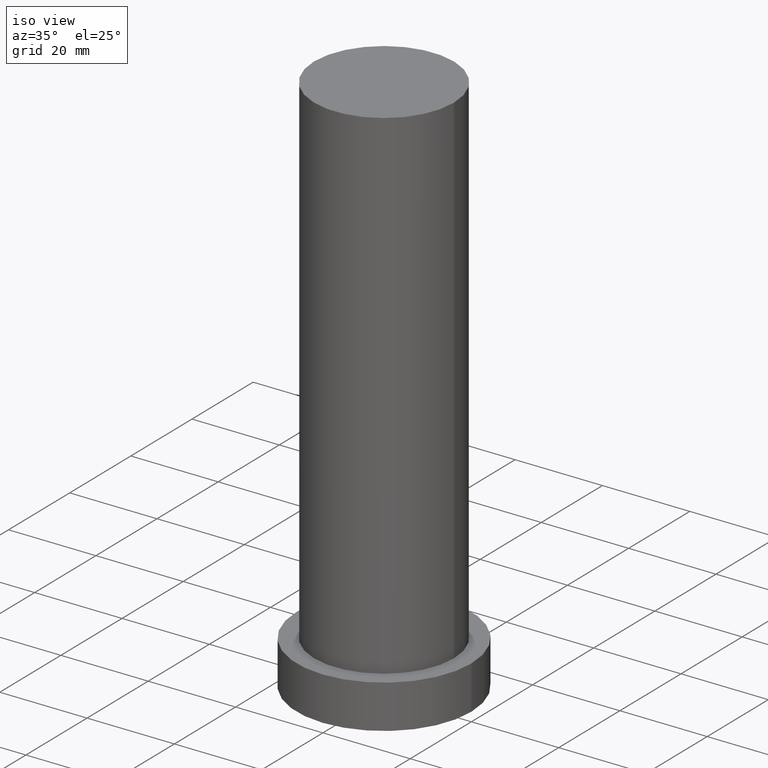
[diagram: clean part render]
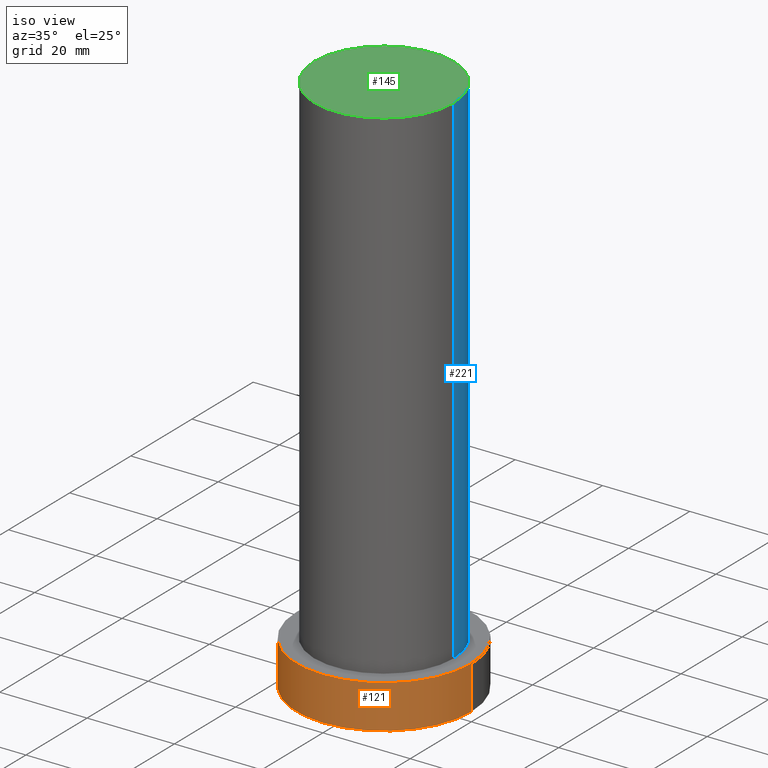
[diagram: same view with three faces highlighted in distinct colors, each labeled with its STEP entity id]
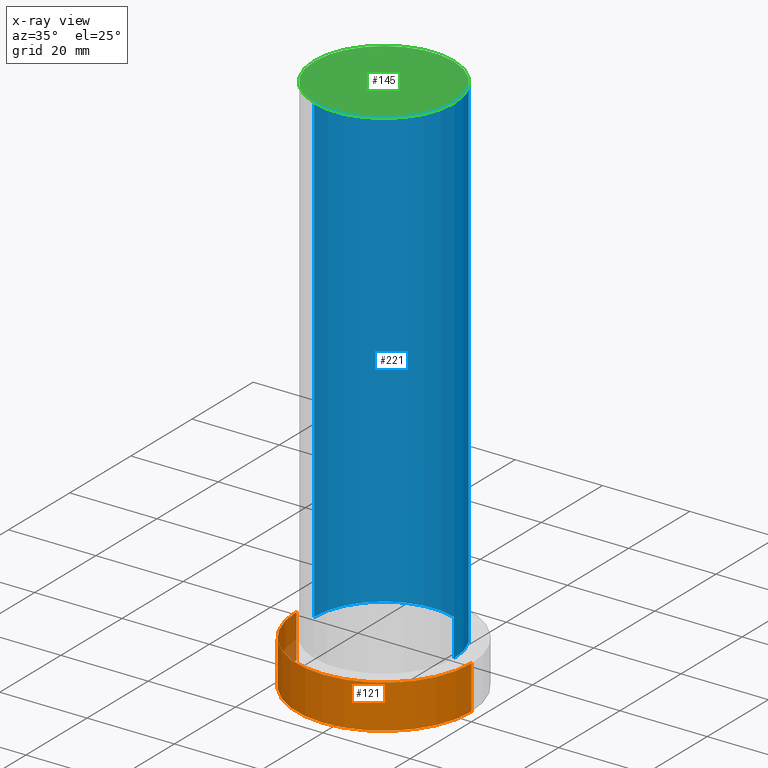
[diagram: x-ray of the same camera — body ghosted, the three highlighted faces saturated]
A machine part, iso view with three faces highlighted in distinct colors.
The next image is the same camera in x-ray (body ghosted, the three faces saturated) — at least one of them is partly hidden behind the body in this view.
Their STEP definitions:

[orange] entity #121 — the highlighted cylindrical surface (partial cylindrical patch) has radius 20 mm, axis along (-0, -0, -1).
#2 = ORIENTED_EDGE ( 'NONE', *, *, #242, .F. ) ;
#3 = CARTESIAN_POINT ( 'NONE',  ( 20.00000000000000000, 2.449293598294706513E-15, 0.000000000000000000 ) ) ;
#5 = VERTEX_POINT ( 'NONE', #142 ) ;
#13 = LINE ( 'NONE', #104, #189 ) ;
#43 = VERTEX_POINT ( 'NONE', #208 ) ;
#66 = DIRECTION ( 'NONE',  ( 1.000000000000000000, 0.000000000000000000, 0.000000000000000000 ) ) ;
#67 = CIRCLE ( 'NONE', #98, 20.00000000000000000 ) ;
#68 = ORIENTED_EDGE ( 'NONE', *, *, #203, .F. ) ;
#76 = ORIENTED_EDGE ( 'NONE', *, *, #216, .T. ) ;
#78 = CARTESIAN_POINT ( 'NONE',  ( 0.000000000000000000, 0.000000000000000000, 10.00000000000000000 ) ) ;
#91 = CARTESIAN_POINT ( 'NONE',  ( 0.000000000000000000, 0.000000000000000000, 10.00000000000000000 ) ) ;
#95 = VERTEX_POINT ( 'NONE', #3 ) ;
#98 = AXIS2_PLACEMENT_3D ( 'NONE', #195, #229, #124 ) ;
#104 = CARTESIAN_POINT ( 'NONE',  ( -20.00000000000000000, 0.000000000000000000, 10.00000000000000000 ) ) ;
#116 = EDGE_LOOP ( 'NONE', ( #68, #2, #76, #225 ) ) ;
#121 = ADVANCED_FACE ( 'NONE', ( #202 ), #138, .T. ) ;
#124 = DIRECTION ( 'NONE',  ( 1.000000000000000000, 0.000000000000000000, 0.000000000000000000 ) ) ;
#132 = CIRCLE ( 'NONE', #170, 20.00000000000000000 ) ;
#138 = CYLINDRICAL_SURFACE ( 'NONE', #218, 20.00000000000000000 ) ;
#142 = CARTESIAN_POINT ( 'NONE',  ( 20.00000000000000000, 2.449293598294706513E-15, 10.00000000000000000 ) ) ;
#153 = VERTEX_POINT ( 'NONE', #159 ) ;
#158 = DIRECTION ( 'NONE',  ( -1.000000000000000000, 0.000000000000000000, 0.000000000000000000 ) ) ;
#159 = CARTESIAN_POINT ( 'NONE',  ( -20.00000000000000000, 0.000000000000000000, 0.000000000000000000 ) ) ;
#170 = AXIS2_PLACEMENT_3D ( 'NONE', #78, #173, #66 ) ;
#173 = DIRECTION ( 'NONE',  ( 0.000000000000000000, 0.000000000000000000, 1.000000000000000000 ) ) ;
#184 = EDGE_CURVE ( 'NONE', #153, #95, #67, .T. ) ;
#187 = DIRECTION ( 'NONE',  ( -0.000000000000000000, -0.000000000000000000, -1.000000000000000000 ) ) ;
#189 = VECTOR ( 'NONE', #192, 1000.000000000000000 ) ;
#191 = LINE ( 'NONE', #210, #199 ) ;
#192 = DIRECTION ( 'NONE',  ( -0.000000000000000000, -0.000000000000000000, -1.000000000000000000 ) ) ;
#195 = CARTESIAN_POINT ( 'NONE',  ( 0.000000000000000000, 0.000000000000000000, 0.000000000000000000 ) ) ;
#199 = VECTOR ( 'NONE', #187, 1000.000000000000000 ) ;
#202 = FACE_OUTER_BOUND ( 'NONE', #116, .T. ) ;
#203 = EDGE_CURVE ( 'NONE', #5, #95, #191, .T. ) ;
#204 = DIRECTION ( 'NONE',  ( -0.000000000000000000, -0.000000000000000000, -1.000000000000000000 ) ) ;
#208 = CARTESIAN_POINT ( 'NONE',  ( -20.00000000000000000, 0.000000000000000000, 10.00000000000000000 ) ) ;
#210 = CARTESIAN_POINT ( 'NONE',  ( 20.00000000000000000, 2.449293598294706513E-15, 10.00000000000000000 ) ) ;
#216 = EDGE_CURVE ( 'NONE', #43, #153, #13, .T. ) ;
#218 = AXIS2_PLACEMENT_3D ( 'NONE', #91, #204, #158 ) ;
#225 = ORIENTED_EDGE ( 'NONE', *, *, #184, .T. ) ;
#229 = DIRECTION ( 'NONE',  ( 0.000000000000000000, 0.000000000000000000, 1.000000000000000000 ) ) ;
#242 = EDGE_CURVE ( 'NONE', #43, #5, #132, .T. ) ;

[blue] entity #221 — the highlighted cylindrical surface (partial cylindrical patch) has radius 16 mm, axis along (-0, -0, -1).
#10 = FACE_OUTER_BOUND ( 'NONE', #244, .T. ) ;
#21 = ORIENTED_EDGE ( 'NONE', *, *, #157, .F. ) ;
#26 = DIRECTION ( 'NONE',  ( -0.000000000000000000, -0.000000000000000000, -1.000000000000000000 ) ) ;
#27 = ORIENTED_EDGE ( 'NONE', *, *, #176, .T. ) ;
#30 = DIRECTION ( 'NONE',  ( -0.000000000000000000, -0.000000000000000000, -1.000000000000000000 ) ) ;
#39 = AXIS2_PLACEMENT_3D ( 'NONE', #163, #155, #247 ) ;
#41 = LINE ( 'NONE', #106, #186 ) ;
#42 = ORIENTED_EDGE ( 'NONE', *, *, #198, .T. ) ;
#46 = AXIS2_PLACEMENT_3D ( 'NONE', #249, #48, #146 ) ;
#48 = DIRECTION ( 'NONE',  ( 0.000000000000000000, 0.000000000000000000, 1.000000000000000000 ) ) ;
#63 = VECTOR ( 'NONE', #127, 1000.000000000000000 ) ;
#64 = CYLINDRICAL_SURFACE ( 'NONE', #129, 16.00000000000000000 ) ;
#77 = ORIENTED_EDGE ( 'NONE', *, *, #211, .F. ) ;
#82 = CARTESIAN_POINT ( 'NONE',  ( 16.00000000000000000, 1.959434878635765131E-15, 10.00000000000000000 ) ) ;
#90 = VERTEX_POINT ( 'NONE', #238 ) ;
#99 = VERTEX_POINT ( 'NONE', #205 ) ;
#106 = CARTESIAN_POINT ( 'NONE',  ( 16.00000000000000000, 1.959434878635765131E-15, 125.0000000000000000 ) ) ;
#122 = CARTESIAN_POINT ( 'NONE',  ( -16.00000000000000000, 0.000000000000000000, 125.0000000000000000 ) ) ;
#127 = DIRECTION ( 'NONE',  ( -0.000000000000000000, -0.000000000000000000, -1.000000000000000000 ) ) ;
#129 = AXIS2_PLACEMENT_3D ( 'NONE', #171, #30, #233 ) ;
#137 = CIRCLE ( 'NONE', #46, 16.00000000000000000 ) ;
#146 = DIRECTION ( 'NONE',  ( 1.000000000000000000, 0.000000000000000000, 0.000000000000000000 ) ) ;
#148 = LINE ( 'NONE', #122, #63 ) ;
#149 = CIRCLE ( 'NONE', #39, 16.00000000000000000 ) ;
#155 = DIRECTION ( 'NONE',  ( 0.000000000000000000, 0.000000000000000000, 1.000000000000000000 ) ) ;
#157 = EDGE_CURVE ( 'NONE', #99, #90, #149, .T. ) ;
#163 = CARTESIAN_POINT ( 'NONE',  ( 0.000000000000000000, 0.000000000000000000, 125.0000000000000000 ) ) ;
#171 = CARTESIAN_POINT ( 'NONE',  ( 0.000000000000000000, 0.000000000000000000, 125.0000000000000000 ) ) ;
#176 = EDGE_CURVE ( 'NONE', #99, #241, #41, .T. ) ;
#186 = VECTOR ( 'NONE', #26, 1000.000000000000000 ) ;
#198 = EDGE_CURVE ( 'NONE', #241, #227, #137, .T. ) ;
#205 = CARTESIAN_POINT ( 'NONE',  ( 16.00000000000000000, 1.959434878635765131E-15, 125.0000000000000000 ) ) ;
#211 = EDGE_CURVE ( 'NONE', #90, #227, #148, .T. ) ;
#214 = CARTESIAN_POINT ( 'NONE',  ( -16.00000000000000000, 0.000000000000000000, 10.00000000000000000 ) ) ;
#221 = ADVANCED_FACE ( 'NONE', ( #10 ), #64, .T. ) ;
#227 = VERTEX_POINT ( 'NONE', #214 ) ;
#233 = DIRECTION ( 'NONE',  ( -1.000000000000000000, 0.000000000000000000, 0.000000000000000000 ) ) ;
#238 = CARTESIAN_POINT ( 'NONE',  ( -16.00000000000000000, 0.000000000000000000, 125.0000000000000000 ) ) ;
#241 = VERTEX_POINT ( 'NONE', #82 ) ;
#244 = EDGE_LOOP ( 'NONE', ( #21, #27, #42, #77 ) ) ;
#247 = DIRECTION ( 'NONE',  ( 1.000000000000000000, 0.000000000000000000, 0.000000000000000000 ) ) ;
#249 = CARTESIAN_POINT ( 'NONE',  ( 0.000000000000000000, 0.000000000000000000, 10.00000000000000000 ) ) ;

[green] entity #145 — the highlighted planar face has unit normal (0, 0, 1).
#4 = DIRECTION ( 'NONE',  ( 0.000000000000000000, 0.000000000000000000, 1.000000000000000000 ) ) ;
#6 = DIRECTION ( 'NONE',  ( 0.000000000000000000, 0.000000000000000000, 1.000000000000000000 ) ) ;
#20 = DIRECTION ( 'NONE',  ( 1.000000000000000000, 0.000000000000000000, 0.000000000000000000 ) ) ;
#23 = FACE_OUTER_BOUND ( 'NONE', #74, .T. ) ;
#39 = AXIS2_PLACEMENT_3D ( 'NONE', #163, #155, #247 ) ;
#53 = ORIENTED_EDGE ( 'NONE', *, *, #157, .T. ) ;
#57 = CARTESIAN_POINT ( 'NONE',  ( 0.000000000000000000, 0.000000000000000000, 125.0000000000000000 ) ) ;
#71 = PLANE ( 'NONE',  #111 ) ;
#74 = EDGE_LOOP ( 'NONE', ( #188, #53 ) ) ;
#75 = DIRECTION ( 'NONE',  ( 1.000000000000000000, 0.000000000000000000, -0.000000000000000000 ) ) ;
#90 = VERTEX_POINT ( 'NONE', #238 ) ;
#99 = VERTEX_POINT ( 'NONE', #205 ) ;
#111 = AXIS2_PLACEMENT_3D ( 'NONE', #224, #6, #75 ) ;
#123 = AXIS2_PLACEMENT_3D ( 'NONE', #57, #4, #20 ) ;
#134 = EDGE_CURVE ( 'NONE', #90, #99, #215, .T. ) ;
#145 = ADVANCED_FACE ( 'NONE', ( #23 ), #71, .T. ) ;
#149 = CIRCLE ( 'NONE', #39, 16.00000000000000000 ) ;
#155 = DIRECTION ( 'NONE',  ( 0.000000000000000000, 0.000000000000000000, 1.000000000000000000 ) ) ;
#157 = EDGE_CURVE ( 'NONE', #99, #90, #149, .T. ) ;
#163 = CARTESIAN_POINT ( 'NONE',  ( 0.000000000000000000, 0.000000000000000000, 125.0000000000000000 ) ) ;
#188 = ORIENTED_EDGE ( 'NONE', *, *, #134, .T. ) ;
#205 = CARTESIAN_POINT ( 'NONE',  ( 16.00000000000000000, 1.959434878635765131E-15, 125.0000000000000000 ) ) ;
#215 = CIRCLE ( 'NONE', #123, 16.00000000000000000 ) ;
#224 = CARTESIAN_POINT ( 'NONE',  ( 0.000000000000000000, 0.000000000000000000, 125.0000000000000000 ) ) ;
#238 = CARTESIAN_POINT ( 'NONE',  ( -16.00000000000000000, 0.000000000000000000, 125.0000000000000000 ) ) ;
#247 = DIRECTION ( 'NONE',  ( 1.000000000000000000, 0.000000000000000000, 0.000000000000000000 ) ) ;